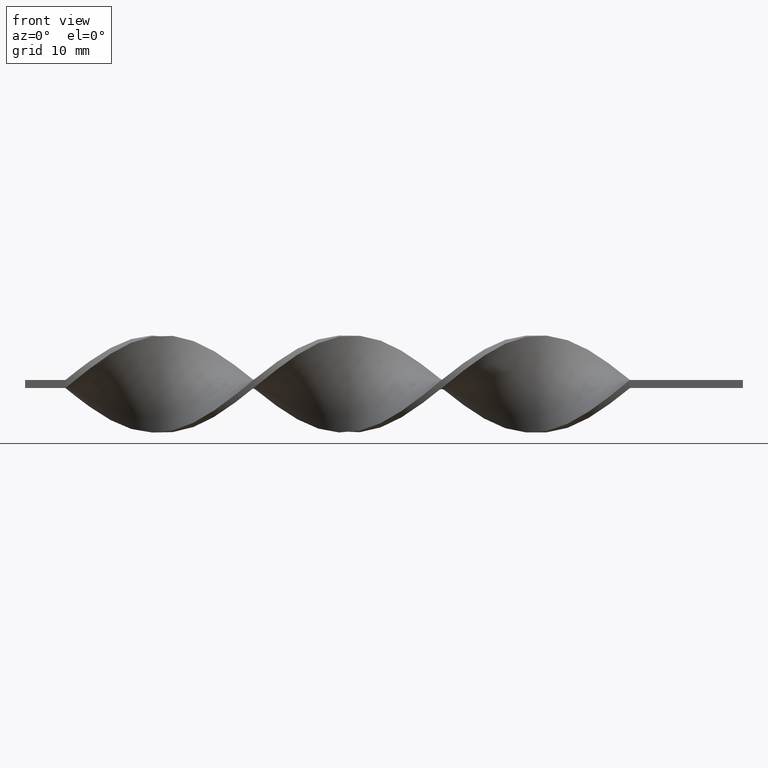
[diagram: clean part render]
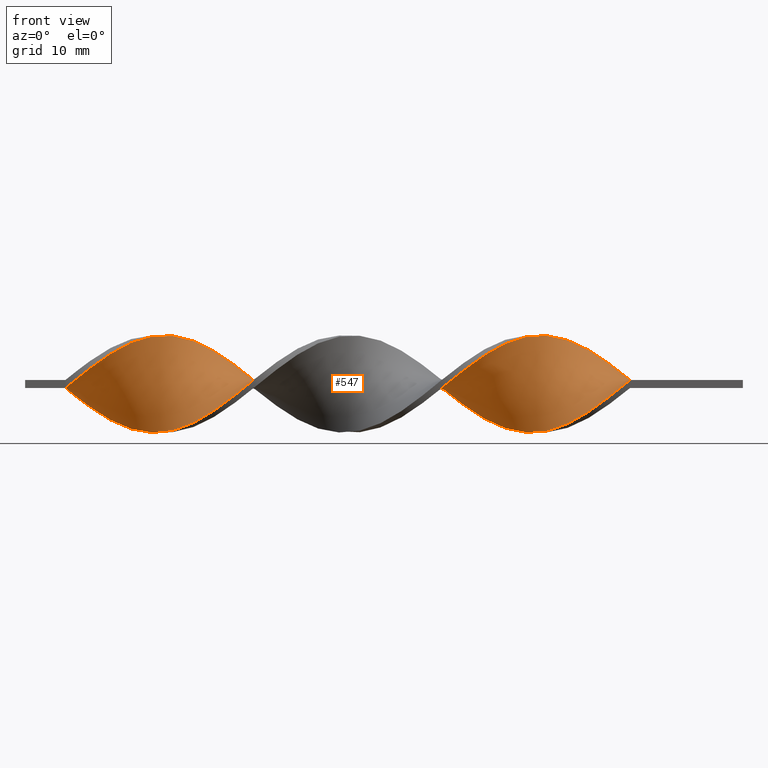
[diagram: same view with one face highlighted and labeled with its STEP entity id]
A machine part, front view. The second image highlights one B-rep face of the part: STEP entity #547.
In plain terms, the highlighted face is a freeform B-spline surface patch.
Its self-contained STEP definition (entity closure, byte-faithful):
#4 = CARTESIAN_POINT ( 'NONE',  ( -13.99999999999999822, 5.999999999999998224, 0.5000000000000000000 ) ) ;
#24 = CARTESIAN_POINT ( 'NONE',  ( -29.25641025641025905, -3.254798188466755615, 5.117688277455213708 ) ) ;
#33 = CARTESIAN_POINT ( 'NONE',  ( -84.00000000000000000, -6.000000000000001776, -0.4999999999999992784 ) ) ;
#37 = CARTESIAN_POINT ( 'NONE',  ( -21.17948717948717885, 2.996896547440105252, 5.221935568727515964 ) ) ;
#40 = CARTESIAN_POINT ( 'NONE',  ( -56.17948717948717530, 5.260288998093233026, -3.018907784180936194 ) ) ;
#48 = CARTESIAN_POINT ( 'NONE',  ( -54.38461538461538680, 4.384962638200767593, -4.190053366537511259 ) ) ;
#51 = CARTESIAN_POINT ( 'NONE',  ( -75.92307692307693401, -3.254798188466755615, 5.117688277455213708 ) ) ;
#58 = CARTESIAN_POINT ( 'NONE',  ( -42.71794871794872250, -4.159503159906211778, -4.352991323530320145 ) ) ;
#66 = CARTESIAN_POINT ( 'NONE',  ( -31.05128205128205465, -4.384962638200773810, 4.190053366537507706 ) ) ;
#73 = CARTESIAN_POINT ( 'NONE',  ( -70.53846153846153300, 0.9574036273986625822, 5.988975108237874601 ) ) ;
#81 = CARTESIAN_POINT ( 'NONE',  ( -66.94871794871794179, 3.630954320453863904, 4.858046446425393405 ) ) ;
#82 = CARTESIAN_POINT ( 'NONE',  ( -24.76923076923076650, -1.219574518580968547, -5.895984904460662257 ) ) ;
#84 = CARTESIAN_POINT ( 'NONE',  ( -32.84615384615384670, 4.688051999358551214, -3.847936200635250437 ) ) ;
#87 = CARTESIAN_POINT ( 'NONE',  ( -82.20512820512820440, -5.945308736700091856, 0.9504230770123227590 ) ) ;
#88 = CARTESIAN_POINT ( 'NONE',  ( -52.58974358974358410, 3.254798188466748954, -5.117688277455216372 ) ) ;
#92 = CARTESIAN_POINT ( 'NONE',  ( -38.23076923076922640, 6.060710991611128584, 0.2285318993335618554 ) ) ;
#93 = CARTESIAN_POINT ( 'NONE',  ( -52.58974358974358410, -2.362838774426347932, 5.585824691029640299 ) ) ;
#97 = CARTESIAN_POINT ( 'NONE',  ( -58.87179487179486870, 5.945308736700089192, -0.9504230770123260896 ) ) ;
#101 = CARTESIAN_POINT ( 'NONE',  ( -57.97435897435897090, -5.472697136436198484, 2.614197889543184772 ) ) ;
#102 = CARTESIAN_POINT ( 'NONE',  ( -46.30769230769230660, 2.595137443597920424, 5.432795012591220107 ) ) ;
#108 = CARTESIAN_POINT ( 'NONE',  ( -83.10256410256410220, 5.939289008388867863, -1.228531899333566324 ) ) ;
#114 = CARTESIAN_POINT ( 'NONE',  ( -46.30769230769230660, 2.595137443597920424, 5.432795012591220107 ) ) ;
#116 = CARTESIAN_POINT ( 'NONE',  ( -14.89743589743589602, 5.939289008388867863, 1.228531899333563215 ) ) ;
#121 = CARTESIAN_POINT ( 'NONE',  ( -49.89743589743589069, -0.2268656444829090235, 6.016521584715984972 ) ) ;
#126 = CARTESIAN_POINT ( 'NONE',  ( -83.10256410256410220, 5.939289008388867863, -1.228531899333566102 ) ) ;
#132 = CARTESIAN_POINT ( 'NONE',  ( -71.43589743589743080, -1.219574518580968547, -5.895984904460662257 ) ) ;
#133 = EDGE_CURVE ( 'NONE', #1590, #1489, #229, .T. ) ;
#139 = CARTESIAN_POINT ( 'NONE',  ( -28.35897435897435770, -2.595137443597922200, 5.432795012591221884 ) ) ;
#158 = CARTESIAN_POINT ( 'NONE',  ( -40.02564102564102200, -5.472697136436200260, -2.614197889543179887 ) ) ;
#164 = CARTESIAN_POINT ( 'NONE',  ( -28.35897435897435770, -2.595137443597922200, 5.432795012591221884 ) ) ;
#168 = CARTESIAN_POINT ( 'NONE',  ( -75.02564102564102200, -2.595137443597922200, 5.432795012591221884 ) ) ;
#175 = CARTESIAN_POINT ( 'NONE',  ( -68.74358974358973740, 2.362838774426346600, 5.585824691029639411 ) ) ;
#179 = CARTESIAN_POINT ( 'NONE',  ( -13.99999999999999645, -6.000000000000001776, 0.5000000000000000000 ) ) ;
#185 = CARTESIAN_POINT ( 'NONE',  ( -20.28205128205128460, 3.630954320453863904, 4.858046446425393405 ) ) ;
#188 = CARTESIAN_POINT ( 'NONE',  ( -84.00000000000000000, 5.999999999999998224, -0.5000000000000007772 ) ) ;
#190 = CARTESIAN_POINT ( 'NONE',  ( -31.94871794871794535, 4.159503159906205561, -4.352991323530322809 ) ) ;
#193 = CARTESIAN_POINT ( 'NONE',  ( -62.46153846153845990, 5.705993072412532285, 1.921364894438372550 ) ) ;
#203 = CARTESIAN_POINT ( 'NONE',  ( -36.43589743589743790, -6.060710991611132137, 0.2285318993335658799 ) ) ;
#204 = CARTESIAN_POINT ( 'NONE',  ( -42.71794871794872250, -4.159503159906211778, -4.352991323530320145 ) ) ;
#207 = CARTESIAN_POINT ( 'NONE',  ( -23.87179487179487580, -1.935476698729091671, -5.747901747727228283 ) ) ;
#213 = CARTESIAN_POINT ( 'NONE',  ( -75.92307692307691980, -3.254798188466755171, 5.117688277455213708 ) ) ;
#217 = CARTESIAN_POINT ( 'NONE',  ( -57.97435897435897090, -5.472697136436198484, 2.614197889543184772 ) ) ;
#222 = EDGE_LOOP ( 'NONE', ( #292, #1089, #1165, #1175 ) ) ;
#223 = CARTESIAN_POINT ( 'NONE',  ( -42.71794871794872250, 4.822625818147003862, 3.604480575359219063 ) ) ;
#229 =( BOUNDED_CURVE ( )  B_SPLINE_CURVE ( 2, ( #4, #757, #1050, #689, #925, #1311, #433, #185, #37, #1183, #1059, #811, #318, #828, #679, #403, #164, #1539, #535, #66, #1559, #1030, #1329, #1570, #1528, #203, #1173, #916, #1409, #553, #563, #1548, #58, #668, #441, #943, #1162, #299, #422, #1438, #1419, #934, #309, #280, #802, #48, #791, #1319, #1429, #950, #412, #821, #1289, #544, #193, #290, #699, #1040, #1153, #1447, #1300, #175, #1191, #73, #574, #1068, #742, #1232, #480, #213, #1094, #709, #854, #1201, #1077, #1598, #87, #472, #601 ),
 .UNSPECIFIED., .F., .T. ) 
 B_SPLINE_CURVE_WITH_KNOTS ( ( 3, 2, 2, 2, 2, 2, 2, 2, 2, 2, 2, 2, 2, 2, 2, 2, 2, 2, 2, 2, 2, 2, 2, 2, 2, 2, 2, 2, 2, 2, 2, 2, 2, 2, 2, 2, 2, 2, 2, 3 ),
 ( 0.000000000000000000, 0.01923076923076923184, 0.03846153846153846367, 0.05769230769230768857, 0.07692307692307692735, 0.09615384615384615918, 0.1153846153846153771, 0.1346153846153846090, 0.1538461538461538547, 0.1730769230769230449, 0.1923076923076923184, 0.2115384615384615363, 0.2307692307692307543, 0.2500000000000000000, 0.2692307692307692180, 0.2884615384615384359, 0.3076923076923077094, 0.3269230769230769273, 0.3461538461538460898, 0.3653846153846153633, 0.3846153846153846367, 0.4038461538461539102, 0.4230769230769230727, 0.4423076923076922906, 0.4615384615384615086, 0.4807692307692307820, 0.5000000000000000000, 0.5192307692307692735, 0.5384615384615384359, 0.5576923076923077094, 0.5769230769230768718, 0.5961538461538461453, 0.6153846153846154188, 0.6346153846153845812, 0.6538461538461538547, 0.6730769230769230171, 0.6923076923076921796, 0.7115384615384615641, 0.7307692307692307265, 0.7500000000000000000 ),
 .UNSPECIFIED. ) 
 CURVE ( )  GEOMETRIC_REPRESENTATION_ITEM ( )  RATIONAL_B_SPLINE_CURVE ( ( 1.000000000000000000, 0.9927088740980539727, 1.000000000000000000, 0.9927088740980539727, 1.000000000000000000, 0.9927088740980539727, 1.000000000000000000, 0.9927088740980539727, 1.000000000000000000, 0.9927088740980539727, 1.000000000000000000, 0.9927088740980539727, 1.000000000000000000, 0.9927088740980539727, 1.000000000000000000, 0.9927088740980539727, 1.000000000000000000, 0.9927088740980539727, 1.000000000000000000, 0.9927088740980539727, 1.000000000000000000, 0.9927088740980539727, 1.000000000000000000, 0.9927088740980539727, 1.000000000000000000, 0.9927088740980539727, 1.000000000000000000, 0.9927088740980539727, 1.000000000000000000, 0.9927088740980539727, 1.000000000000000000, 0.9927088740980539727, 1.000000000000000000, 0.9927088740980539727, 1.000000000000000000, 0.9927088740980539727, 1.000000000000000000, 0.9927088740980539727, 1.000000000000000000, 0.9927088740980539727, 1.000000000000000000, 0.9927088740980539727, 1.000000000000000000, 0.9927088740980539727, 1.000000000000000000, 0.9927088740980539727, 1.000000000000000000, 0.9927088740980539727, 1.000000000000000000, 0.9927088740980539727, 1.000000000000000000, 0.9927088740980539727, 1.000000000000000000, 0.9927088740980539727, 1.000000000000000000, 0.9927088740980539727, 1.000000000000000000, 0.9927088740980539727, 1.000000000000000000, 0.9927088740980539727, 1.000000000000000000, 0.9927088740980539727, 1.000000000000000000, 0.9927088740980539727, 1.000000000000000000, 0.9927088740980539727, 1.000000000000000000, 0.9927088740980539727, 1.000000000000000000, 0.9927088740980539727, 1.000000000000000000, 0.9927088740980539727, 1.000000000000000000, 0.9927088740980539727, 1.000000000000000000, 0.9927088740980539727, 1.000000000000000000, 0.9927088740980539727, 1.000000000000000000 ) ) 
 REPRESENTATION_ITEM ( '' )  );
#231 = CARTESIAN_POINT ( 'NONE',  ( -67.84615384615385381, -3.819880413333765823, -4.653870821996360263 ) ) ;
#235 = CARTESIAN_POINT ( 'NONE',  ( -40.02564102564102200, 5.829906481789052464, 1.672314254691075419 ) ) ;
#236 = CARTESIAN_POINT ( 'NONE',  ( -81.30769230769233502, 5.472697136436194931, -2.614197889543184328 ) ) ;
#241 = CARTESIAN_POINT ( 'NONE',  ( -47.20512820512820440, 1.935476698729087452, 5.747901747727229171 ) ) ;
#242 = CARTESIAN_POINT ( 'NONE',  ( -51.69230769230769340, -1.660121200912508588, 5.787399899633757450 ) ) ;
#250 = CARTESIAN_POINT ( 'NONE',  ( -64.25641025641024839, -5.545097739941144965, -2.345611019436005584 ) ) ;
#257 = CARTESIAN_POINT ( 'NONE',  ( -72.33333333333332860, -0.5036723384328438691, -6.044068061194097119 ) ) ;
#263 = CARTESIAN_POINT ( 'NONE',  ( -18.48717948717948545, 4.688051999358552102, 3.847936200635250437 ) ) ;
#280 = CARTESIAN_POINT ( 'NONE',  ( -52.58974358974359120, 3.254798188466748510, -5.117688277455216372 ) ) ;
#284 = CARTESIAN_POINT ( 'NONE',  ( -68.74358974358973740, 2.362838774426347044, 5.585824691029640299 ) ) ;
#290 = CARTESIAN_POINT ( 'NONE',  ( -63.35897435897436480, 5.472697136436195819, 2.614197889543182107 ) ) ;
#292 = ORIENTED_EDGE ( 'NONE', *, *, #933, .F. ) ;
#294 = CARTESIAN_POINT ( 'NONE',  ( -26.56410256410256210, 0.2268656444829082741, -6.016521584715985860 ) ) ;
#295 = CARTESIAN_POINT ( 'NONE',  ( -13.99999999999999822, 5.999999999999998224, 0.5000000000000000000 ) ) ;
#299 = CARTESIAN_POINT ( 'NONE',  ( -47.20512820512820440, -0.9574036273986661350, -5.988975108237873712 ) ) ;
#305 = CARTESIAN_POINT ( 'NONE',  ( -23.87179487179487580, -1.935476698729091671, -5.747901747727228283 ) ) ;
#309 = CARTESIAN_POINT ( 'NONE',  ( -51.69230769230769340, 2.595137443597918647, -5.432795012591220996 ) ) ;
#312 = CARTESIAN_POINT ( 'NONE',  ( -19.38461538461538325, -4.822625818147006527, -3.604480575359219952 ) ) ;
#318 = CARTESIAN_POINT ( 'NONE',  ( -24.76923076923076650, 0.2268656444829103280, 6.016521584715985860 ) ) ;
#319 = CARTESIAN_POINT ( 'NONE',  ( -84.00000000000000000, -6.000000000000001776, -0.4999999999999992784 ) ) ;
#330 = CARTESIAN_POINT ( 'NONE',  ( -70.53846153846153300, 0.9574036273986625822, 5.988975108237873712 ) ) ;
#334 = CARTESIAN_POINT ( 'NONE',  ( -37.33333333333332860, 5.999999999999998224, -0.5000000000000007772 ) ) ;
#339 = CARTESIAN_POINT ( 'NONE',  ( -60.66666666666666430, -6.000000000000001776, 0.5000000000000000000 ) ) ;
#348 = CARTESIAN_POINT ( 'NONE',  ( -31.05128205128205465, 3.630954320453861239, -4.858046446425394294 ) ) ;
#349 = CARTESIAN_POINT ( 'NONE',  ( -76.82051282051281760, 2.996896547440103920, -5.221935568727516852 ) ) ;
#355 = CARTESIAN_POINT ( 'NONE',  ( -36.43589743589743790, 5.939289008388867863, -1.228531899333566102 ) ) ;
#356 = CARTESIAN_POINT ( 'NONE',  ( -50.79487179487178850, -0.9574036273986635814, 5.988975108237873712 ) ) ;
#362 = CARTESIAN_POINT ( 'NONE',  ( -34.64102564102564230, 5.472697136436194931, -2.614197889543184328 ) ) ;
#363 = CARTESIAN_POINT ( 'NONE',  ( -17.58974358974358765, 5.080374567897373517, 3.231067045089215828 ) ) ;
#368 = CARTESIAN_POINT ( 'NONE',  ( -74.12820512820510999, 0.9574036273986619161, -5.988975108237873712 ) ) ;
#379 = CARTESIAN_POINT ( 'NONE',  ( -84.00000000000000000, 1.999999999999998224, -0.5000000000000002220 ) ) ;
#382 = CARTESIAN_POINT ( 'NONE',  ( -75.92307692307691980, 2.362838774426345712, -5.585824691029639411 ) ) ;
#383 = CARTESIAN_POINT ( 'NONE',  ( -24.76923076923076650, 0.2268656444829103280, 6.016521584715985860 ) ) ;
#390 = CARTESIAN_POINT ( 'NONE',  ( -32.84615384615384670, -5.260288998093236579, 3.018907784180935749 ) ) ;
#398 = CARTESIAN_POINT ( 'NONE',  ( -22.97435897435897090, 1.660121200912505479, 5.787399899633756561 ) ) ;
#403 = CARTESIAN_POINT ( 'NONE',  ( -27.46153846153846345, -1.935476698729090783, 5.747901747727229171 ) ) ;
#405 = CARTESIAN_POINT ( 'NONE',  ( -66.05128205128204399, 4.159503159906207337, 4.352991323530321033 ) ) ;
#409 = LINE ( 'NONE', #647, #1195 ) ;
#412 = CARTESIAN_POINT ( 'NONE',  ( -58.87179487179486870, 5.945308736700089192, -0.9504230770123260896 ) ) ;
#415 = CARTESIAN_POINT ( 'NONE',  ( -37.33333333333332860, -6.000000000000001776, -0.4999999999999992784 ) ) ;
#422 = CARTESIAN_POINT ( 'NONE',  ( -48.10256410256410220, -0.2268656444829164898, -6.016521584715985860 ) ) ;
#428 = CARTESIAN_POINT ( 'NONE',  ( -20.28205128205128460, -4.384962638200775586, -4.190053366537506818 ) ) ;
#433 = CARTESIAN_POINT ( 'NONE',  ( -19.38461538461538325, 4.159503159906207337, 4.352991323530321033 ) ) ;
#438 = FACE_OUTER_BOUND ( 'NONE', #222, .T. ) ;
#441 = CARTESIAN_POINT ( 'NONE',  ( -44.51282051282051100, -2.996896547440109693, -5.221935568727515964 ) ) ;
#446 = CARTESIAN_POINT ( 'NONE',  ( -16.69230769230769695, -5.829906481789053352, -1.672314254691077640 ) ) ;
#454 = CARTESIAN_POINT ( 'NONE',  ( -52.58974358974359120, -2.362838774426347488, 5.585824691029640299 ) ) ;
#456 = CARTESIAN_POINT ( 'NONE',  ( -70.53846153846153300, -1.935476698729091671, -5.747901747727228283 ) ) ;
#462 = CARTESIAN_POINT ( 'NONE',  ( -64.25641025641024839, 5.080374567897373517, 3.231067045089215828 ) ) ;
#465 = CARTESIAN_POINT ( 'NONE',  ( -57.07692307692307310, -5.080374567897375293, 3.231067045089219825 ) ) ;
#467 = CARTESIAN_POINT ( 'NONE',  ( -38.23076923076922640, 6.060710991611127696, 0.2285318993335618554 ) ) ;
#472 = CARTESIAN_POINT ( 'NONE',  ( -83.10256410256410220, -6.060710991611132137, 0.2285318993335658799 ) ) ;
#473 = CARTESIAN_POINT ( 'NONE',  ( -40.92307692307691980, -5.080374567897377069, -3.231067045089215828 ) ) ;
#476 = CARTESIAN_POINT ( 'NONE',  ( -53.48717948717948900, -2.996896547440107472, 5.221935568727517740 ) ) ;
#477 = CARTESIAN_POINT ( 'NONE',  ( -34.64102564102564230, 5.472697136436194931, -2.614197889543184328 ) ) ;
#480 = CARTESIAN_POINT ( 'NONE',  ( -75.02564102564102200, -2.595137443597922200, 5.432795012591221884 ) ) ;
#484 = CARTESIAN_POINT ( 'NONE',  ( -13.99999999999999822, 5.999999999999998224, 0.5000000000000000000 ) ) ;
#493 = CARTESIAN_POINT ( 'NONE',  ( -16.69230769230769695, 5.472697136436195819, 2.614197889543182107 ) ) ;
#503 = CARTESIAN_POINT ( 'NONE',  ( -19.38461538461538325, 4.159503159906207337, 4.352991323530321033 ) ) ;
#506 = CARTESIAN_POINT ( 'NONE',  ( -59.76923076923076650, -5.939289008388871416, 1.228531899333566768 ) ) ;
#507 = CARTESIAN_POINT ( 'NONE',  ( -25.66666666666666785, -0.5036723384328430919, 6.044068061194097119 ) ) ;
#522 = CARTESIAN_POINT ( 'NONE',  ( -30.15384615384615330, -3.819880413333764491, 4.653870821996361151 ) ) ;
#529 = CARTESIAN_POINT ( 'NONE',  ( -13.99999999999999645, -6.000000000000001776, 0.5000000000000000000 ) ) ;
#535 = CARTESIAN_POINT ( 'NONE',  ( -30.15384615384615330, -3.819880413333764491, 4.653870821996361151 ) ) ;
#537 = CARTESIAN_POINT ( 'NONE',  ( -60.66666666666666430, 5.999999999999998224, 0.5000000000000000000 ) ) ;
#540 = CARTESIAN_POINT ( 'NONE',  ( -24.76923076923076650, -1.219574518580968547, -5.895984904460662257 ) ) ;
#543 =( BOUNDED_CURVE ( )  B_SPLINE_CURVE ( 2, ( #179, #1432, #954, #692, #1186, #1442, #312, #1071, #1572, #1449, #1332, #207, #82, #586, #1532, #746, #1361, #615, #1227, #348, #1081, #1476, #1106, #362, #724, #355, #733, #92, #1218, #235, #1608, #1490, #858, #1368, #964, #1242, #114, #241, #753, #1097, #121, #1583, #596, #454, #476, #606, #1460, #1592, #465, #101, #982, #506, #1496, #1009, #1146, #1500, #250, #1395, #770, #1275, #1382, #1119, #1138, #1014, #132, #257, #1023, #368, #908, #382, #878, #764, #1000, #1132, #1254, #1522, #1265, #126, #1389 ),
 .UNSPECIFIED., .F., .T. ) 
 B_SPLINE_CURVE_WITH_KNOTS ( ( 3, 2, 2, 2, 2, 2, 2, 2, 2, 2, 2, 2, 2, 2, 2, 2, 2, 2, 2, 2, 2, 2, 2, 2, 2, 2, 2, 2, 2, 2, 2, 2, 2, 2, 2, 2, 2, 2, 2, 3 ),
 ( 0.000000000000000000, 0.01923076923076923184, 0.03846153846153846367, 0.05769230769230768857, 0.07692307692307692735, 0.09615384615384615918, 0.1153846153846153771, 0.1346153846153846090, 0.1538461538461538547, 0.1730769230769230449, 0.1923076923076923184, 0.2115384615384615363, 0.2307692307692307543, 0.2500000000000000000, 0.2692307692307692180, 0.2884615384615384359, 0.3076923076923077094, 0.3269230769230769273, 0.3461538461538460898, 0.3653846153846153633, 0.3846153846153846367, 0.4038461538461539102, 0.4230769230769230727, 0.4423076923076922906, 0.4615384615384615086, 0.4807692307692307820, 0.5000000000000000000, 0.5192307692307692735, 0.5384615384615384359, 0.5576923076923077094, 0.5769230769230768718, 0.5961538461538461453, 0.6153846153846154188, 0.6346153846153845812, 0.6538461538461538547, 0.6730769230769230171, 0.6923076923076921796, 0.7115384615384615641, 0.7307692307692307265, 0.7500000000000000000 ),
 .UNSPECIFIED. ) 
 CURVE ( )  GEOMETRIC_REPRESENTATION_ITEM ( )  RATIONAL_B_SPLINE_CURVE ( ( 1.000000000000000000, 0.9927088740980539727, 1.000000000000000000, 0.9927088740980539727, 1.000000000000000000, 0.9927088740980539727, 1.000000000000000000, 0.9927088740980539727, 1.000000000000000000, 0.9927088740980539727, 1.000000000000000000, 0.9927088740980539727, 1.000000000000000000, 0.9927088740980539727, 1.000000000000000000, 0.9927088740980539727, 1.000000000000000000, 0.9927088740980539727, 1.000000000000000000, 0.9927088740980539727, 1.000000000000000000, 0.9927088740980539727, 1.000000000000000000, 0.9927088740980539727, 1.000000000000000000, 0.9927088740980539727, 1.000000000000000000, 0.9927088740980539727, 1.000000000000000000, 0.9927088740980539727, 1.000000000000000000, 0.9927088740980539727, 1.000000000000000000, 0.9927088740980539727, 1.000000000000000000, 0.9927088740980539727, 1.000000000000000000, 0.9927088740980539727, 1.000000000000000000, 0.9927088740980539727, 1.000000000000000000, 0.9927088740980539727, 1.000000000000000000, 0.9927088740980539727, 1.000000000000000000, 0.9927088740980539727, 1.000000000000000000, 0.9927088740980539727, 1.000000000000000000, 0.9927088740980539727, 1.000000000000000000, 0.9927088740980539727, 1.000000000000000000, 0.9927088740980539727, 1.000000000000000000, 0.9927088740980539727, 1.000000000000000000, 0.9927088740980539727, 1.000000000000000000, 0.9927088740980539727, 1.000000000000000000, 0.9927088740980539727, 1.000000000000000000, 0.9927088740980539727, 1.000000000000000000, 0.9927088740980539727, 1.000000000000000000, 0.9927088740980539727, 1.000000000000000000, 0.9927088740980539727, 1.000000000000000000, 0.9927088740980539727, 1.000000000000000000, 0.9927088740980539727, 1.000000000000000000, 0.9927088740980539727, 1.000000000000000000, 0.9927088740980539727, 1.000000000000000000 ) ) 
 REPRESENTATION_ITEM ( '' )  );
#544 = CARTESIAN_POINT ( 'NONE',  ( -61.56410256410256920, 5.939289008388867863, 1.228531899333562993 ) ) ;
#547 = ADVANCED_FACE ( 'NONE', ( #438 ), #898, .T. ) ;
#548 = CARTESIAN_POINT ( 'NONE',  ( -79.51282051282051100, -5.260288998093236579, 3.018907784180935749 ) ) ;
#550 = CARTESIAN_POINT ( 'NONE',  ( -14.89743589743589602, -6.060710991611131249, -0.2285318993335631599 ) ) ;
#553 = CARTESIAN_POINT ( 'NONE',  ( -40.02564102564102200, -5.472697136436200260, -2.614197889543179887 ) ) ;
#563 = CARTESIAN_POINT ( 'NONE',  ( -40.92307692307691980, -5.080374567897377069, -3.231067045089215828 ) ) ;
#564 = CARTESIAN_POINT ( 'NONE',  ( -84.00000000000000000, -6.000000000000001776, -0.4999999999999992784 ) ) ;
#574 = CARTESIAN_POINT ( 'NONE',  ( -71.43589743589743080, 0.2268656444829103280, 6.016521584715985860 ) ) ;
#583 = CARTESIAN_POINT ( 'NONE',  ( -69.64102564102564941, 1.660121200912505479, 5.787399899633756561 ) ) ;
#586 = CARTESIAN_POINT ( 'NONE',  ( -25.66666666666666785, -0.5036723384328438691, -6.044068061194097119 ) ) ;
#588 = CARTESIAN_POINT ( 'NONE',  ( -39.12820512820512420, 5.945308736700090080, 0.9504230770123185401 ) ) ;
#593 = CARTESIAN_POINT ( 'NONE',  ( -61.56410256410256920, 5.939289008388867863, 1.228531899333563215 ) ) ;
#596 = CARTESIAN_POINT ( 'NONE',  ( -51.69230769230769340, -1.660121200912508588, 5.787399899633757450 ) ) ;
#597 = CARTESIAN_POINT ( 'NONE',  ( -45.41025641025640880, 3.254798188466754727, 5.117688277455211932 ) ) ;
#601 = CARTESIAN_POINT ( 'NONE',  ( -84.00000000000000000, -6.000000000000001776, -0.4999999999999992784 ) ) ;
#603 = CARTESIAN_POINT ( 'NONE',  ( -45.41025641025640880, -2.362838774426354593, -5.585824691029638522 ) ) ;
#606 = CARTESIAN_POINT ( 'NONE',  ( -54.38461538461538680, -3.630954320453861683, 4.858046446425396070 ) ) ;
#608 = CARTESIAN_POINT ( 'NONE',  ( -74.12820512820512420, 0.9574036273986619161, -5.988975108237873712 ) ) ;
#615 = CARTESIAN_POINT ( 'NONE',  ( -29.25641025641025905, 2.362838774426345712, -5.585824691029639411 ) ) ;
#617 = CARTESIAN_POINT ( 'NONE',  ( -84.00000000000000000, 5.999999999999998224, -0.5000000000000007772 ) ) ;
#621 = CARTESIAN_POINT ( 'NONE',  ( -43.61538461538461320, 4.384962638200772034, 4.190053366537505042 ) ) ;
#647 = CARTESIAN_POINT ( 'NONE',  ( -13.99999999999999822, 5.999999999999998224, 0.5000000000000000000 ) ) ;
#652 = CARTESIAN_POINT ( 'NONE',  ( -33.74358974358974450, -5.545097739941144077, 2.345611019436007361 ) ) ;
#660 = CARTESIAN_POINT ( 'NONE',  ( -49.89743589743589069, 1.219574518580958999, -5.895984904460663145 ) ) ;
#668 = CARTESIAN_POINT ( 'NONE',  ( -43.61538461538461320, -3.630954320453868345, -4.858046446425391629 ) ) ;
#672 = CARTESIAN_POINT ( 'NONE',  ( -76.82051282051281760, -3.819880413333764491, 4.653870821996361151 ) ) ;
#679 = CARTESIAN_POINT ( 'NONE',  ( -26.56410256410256210, -1.219574518580966549, 5.895984904460662257 ) ) ;
#685 = CARTESIAN_POINT ( 'NONE',  ( -28.35897435897435770, 1.660121200912503259, -5.787399899633756561 ) ) ;
#689 = CARTESIAN_POINT ( 'NONE',  ( -16.69230769230769340, 5.472697136436195819, 2.614197889543182107 ) ) ;
#692 = CARTESIAN_POINT ( 'NONE',  ( -16.69230769230769340, -5.829906481789053352, -1.672314254691077418 ) ) ;
#699 = CARTESIAN_POINT ( 'NONE',  ( -64.25641025641024839, 5.080374567897373517, 3.231067045089215828 ) ) ;
#704 = CARTESIAN_POINT ( 'NONE',  ( -13.99999999999999822, -6.000000000000001776, 0.5000000000000000000 ) ) ;
#709 = CARTESIAN_POINT ( 'NONE',  ( -77.71794871794874382, -4.384962638200773810, 4.190053366537507706 ) ) ;
#710 = CARTESIAN_POINT ( 'NONE',  ( -51.69230769230769340, 2.595137443597918647, -5.432795012591220996 ) ) ;
#715 = CARTESIAN_POINT ( 'NONE',  ( -22.97435897435897090, -2.595137443597924420, -5.432795012591220107 ) ) ;
#724 = CARTESIAN_POINT ( 'NONE',  ( -35.53846153846153300, 5.705993072412531397, -1.921364894438374549 ) ) ;
#725 = CARTESIAN_POINT ( 'NONE',  ( -41.82051282051281760, 5.260288998093234802, 3.018907784180933973 ) ) ;
#733 = CARTESIAN_POINT ( 'NONE',  ( -37.33333333333332860, 5.999999999999998224, -0.5000000000000007772 ) ) ;
#735 = CARTESIAN_POINT ( 'NONE',  ( -69.64102564102564941, -2.595137443597924420, -5.432795012591220107 ) ) ;
#740 = CARTESIAN_POINT ( 'NONE',  ( -80.41025641025640880, 5.080374567897372629, -3.231067045089216716 ) ) ;
#742 = CARTESIAN_POINT ( 'NONE',  ( -73.23076923076924061, -1.219574518580966549, 5.895984904460662257 ) ) ;
#746 = CARTESIAN_POINT ( 'NONE',  ( -27.46153846153846345, 0.9574036273986619161, -5.988975108237873712 ) ) ;
#747 = CARTESIAN_POINT ( 'NONE',  ( -40.02564102564102200, 5.829906481789052464, 1.672314254691075419 ) ) ;
#753 = CARTESIAN_POINT ( 'NONE',  ( -48.10256410256410220, 1.219574518580966549, 5.895984904460662257 ) ) ;
#754 = CARTESIAN_POINT ( 'NONE',  ( -54.38461538461538680, -3.630954320453861683, 4.858046446425396070 ) ) ;
#757 = CARTESIAN_POINT ( 'NONE',  ( -14.89743589743589602, 5.939289008388867863, 1.228531899333562993 ) ) ;
#764 = CARTESIAN_POINT ( 'NONE',  ( -77.71794871794874382, 3.630954320453861239, -4.858046446425394294 ) ) ;
#770 = CARTESIAN_POINT ( 'NONE',  ( -66.05128205128204399, -4.822625818147006527, -3.604480575359219952 ) ) ;
#771 = CARTESIAN_POINT ( 'NONE',  ( -20.28205128205128460, 3.630954320453863904, 4.858046446425393405 ) ) ;
#785 = CARTESIAN_POINT ( 'NONE',  ( -49.00000000000000711, 0.5036723384328384290, -6.044068061194097119 ) ) ;
#791 = CARTESIAN_POINT ( 'NONE',  ( -55.28205128205128460, 4.822625818147000309, -3.604480575359223060 ) ) ;
#794 = CARTESIAN_POINT ( 'NONE',  ( -46.30769230769230660, -1.660121200912510142, -5.787399899633756561 ) ) ;
#797 = CARTESIAN_POINT ( 'NONE',  ( -15.79487179487179205, -5.945308736700092744, -0.9504230770123205385 ) ) ;
#802 = CARTESIAN_POINT ( 'NONE',  ( -53.48717948717948900, 3.819880413333759606, -4.653870821996362039 ) ) ;
#811 = CARTESIAN_POINT ( 'NONE',  ( -23.87179487179487580, 0.9574036273986625822, 5.988975108237874601 ) ) ;
#817 = CARTESIAN_POINT ( 'NONE',  ( -21.17948717948717885, -3.819880413333765823, -4.653870821996360263 ) ) ;
#821 = CARTESIAN_POINT ( 'NONE',  ( -59.76923076923076650, 6.060710991611128584, -0.2285318993335666293 ) ) ;
#828 = CARTESIAN_POINT ( 'NONE',  ( -25.66666666666666785, -0.5036723384328430919, 6.044068061194097119 ) ) ;
#829 = CARTESIAN_POINT ( 'NONE',  ( -73.23076923076924061, -1.219574518580966549, 5.895984904460662257 ) ) ;
#835 = CARTESIAN_POINT ( 'NONE',  ( -25.66666666666666785, -0.5036723384328438691, -6.044068061194097119 ) ) ;
#841 = CARTESIAN_POINT ( 'NONE',  ( -57.97435897435897090, 5.829906481789050687, -1.672314254691080526 ) ) ;
#848 = CARTESIAN_POINT ( 'NONE',  ( -55.28205128205128460, 4.822625818147000309, -3.604480575359223060 ) ) ;
#852 = CARTESIAN_POINT ( 'NONE',  ( -65.15384615384614619, -5.260288998093237467, -3.018907784180934417 ) ) ;
#854 = CARTESIAN_POINT ( 'NONE',  ( -78.61538461538461320, -4.822625818147004750, 3.604480575359222172 ) ) ;
#858 = CARTESIAN_POINT ( 'NONE',  ( -42.71794871794872250, 4.822625818147003862, 3.604480575359219063 ) ) ;
#859 = CARTESIAN_POINT ( 'NONE',  ( -77.71794871794872961, 3.630954320453861239, -4.858046446425394294 ) ) ;
#867 = CARTESIAN_POINT ( 'NONE',  ( -66.94871794871794179, -4.384962638200775586, -4.190053366537506818 ) ) ;
#872 = CARTESIAN_POINT ( 'NONE',  ( -48.10256410256410220, 1.219574518580966549, 5.895984904460662257 ) ) ;
#878 = CARTESIAN_POINT ( 'NONE',  ( -76.82051282051281760, 2.996896547440103920, -5.221935568727516852 ) ) ;
#894 = CARTESIAN_POINT ( 'NONE',  ( -22.07692307692308376, 2.362838774426347044, 5.585824691029640299 ) ) ;
#898 =( BOUNDED_SURFACE ( )  B_SPLINE_SURFACE ( 1, 2, ( 
 ( #704, #550, #797, #446, #1046, #1196, #1450, #428, #817, #1545, #715, #305, #540, #835, #294, #1308, #685, #1179, #1315, #940, #190, #84, #1220, #477, #1369, #1469, #334, #467, #588, #747, #990, #725, #223, #621, #1084, #597, #102, #1584, #872, #1342, #1484, #356, #242, #93, #1601, #754, #1229, #976, #1349, #217, #1492, #1609, #339, #1595, #967, #984, #1113, #852, #1090, #867, #231, #1244, #735, #456, #1107, #994, #1462, #608, #1099, #1477, #349, #859, #1355, #1363, #740, #236, #1235, #108, #617 ),
 ( #484, #116, #1617, #493, #363, #263, #503, #771, #1139, #894, #398, #910, #383, #507, #1502, #1390, #139, #24, #522, #1015, #1515, #390, #652, #1024, #1404, #1088, #415, #1330, #1282, #158, #473, #980, #204, #1474, #1456, #603, #794, #1422, #1095, #785, #660, #919, #710, #88, #1155, #1589, #848, #40, #1202, #841, #97, #960, #537, #593, #1033, #1531, #462, #1580, #405, #81, #1412, #284, #583, #330, #1292, #973, #829, #1466, #168, #51, #672, #1166, #1078, #548, #1043, #1542, #1339, #928, #319 ) ),
 .UNSPECIFIED., .F., .F., .F. ) 
 B_SPLINE_SURFACE_WITH_KNOTS ( ( 2, 2 ),
 ( 3, 2, 2, 2, 2, 2, 2, 2, 2, 2, 2, 2, 2, 2, 2, 2, 2, 2, 2, 2, 2, 2, 2, 2, 2, 2, 2, 2, 2, 2, 2, 2, 2, 2, 2, 2, 2, 2, 2, 3 ),
 ( 0.000000000000000000, 1.000000000000000000 ),
 ( 0.000000000000000000, 0.01923076923076923184, 0.03846153846153846367, 0.05769230769230769551, 0.07692307692307692735, 0.09615384615384615918, 0.1153846153846153910, 0.1346153846153846090, 0.1538461538461538547, 0.1730769230769230727, 0.1923076923076923184, 0.2115384615384615363, 0.2307692307692307820, 0.2500000000000000000, 0.2692307692307692180, 0.2884615384615384359, 0.3076923076923077094, 0.3269230769230769273, 0.3461538461538461453, 0.3653846153846153633, 0.3846153846153846367, 0.4038461538461538547, 0.4230769230769230727, 0.4423076923076922906, 0.4615384615384615641, 0.4807692307692307820, 0.5000000000000000000, 0.5192307692307692735, 0.5384615384615384359, 0.5576923076923077094, 0.5769230769230768718, 0.5961538461538461453, 0.6153846153846154188, 0.6346153846153845812, 0.6538461538461538547, 0.6730769230769231282, 0.6923076923076922906, 0.7115384615384615641, 0.7307692307692307265, 0.7500000000000000000 ),
 .UNSPECIFIED. ) 
 GEOMETRIC_REPRESENTATION_ITEM ( )  RATIONAL_B_SPLINE_SURFACE ( (
 ( 1.000000000000000000, 0.9927088740980539727, 1.000000000000000000, 0.9927088740980539727, 1.000000000000000000, 0.9927088740980539727, 1.000000000000000000, 0.9927088740980539727, 1.000000000000000000, 0.9927088740980539727, 1.000000000000000000, 0.9927088740980539727, 1.000000000000000000, 0.9927088740980539727, 1.000000000000000000, 0.9927088740980539727, 1.000000000000000000, 0.9927088740980539727, 1.000000000000000000, 0.9927088740980539727, 1.000000000000000000, 0.9927088740980539727, 1.000000000000000000, 0.9927088740980539727, 1.000000000000000000, 0.9927088740980539727, 1.000000000000000000, 0.9927088740980539727, 1.000000000000000000, 0.9927088740980539727, 1.000000000000000000, 0.9927088740980539727, 1.000000000000000000, 0.9927088740980539727, 1.000000000000000000, 0.9927088740980539727, 1.000000000000000000, 0.9927088740980539727, 1.000000000000000000, 0.9927088740980539727, 1.000000000000000000, 0.9927088740980539727, 1.000000000000000000, 0.9927088740980539727, 1.000000000000000000, 0.9927088740980539727, 1.000000000000000000, 0.9927088740980539727, 1.000000000000000000, 0.9927088740980539727, 1.000000000000000000, 0.9927088740980539727, 1.000000000000000000, 0.9927088740980539727, 1.000000000000000000, 0.9927088740980539727, 1.000000000000000000, 0.9927088740980539727, 1.000000000000000000, 0.9927088740980539727, 1.000000000000000000, 0.9927088740980539727, 1.000000000000000000, 0.9927088740980539727, 1.000000000000000000, 0.9927088740980539727, 1.000000000000000000, 0.9927088740980539727, 1.000000000000000000, 0.9927088740980539727, 1.000000000000000000, 0.9927088740980539727, 1.000000000000000000, 0.9927088740980539727, 1.000000000000000000, 0.9927088740980539727, 1.000000000000000000, 0.9927088740980539727, 1.000000000000000000),
 ( 1.000000000000000000, 0.9927088740980539727, 1.000000000000000000, 0.9927088740980539727, 1.000000000000000000, 0.9927088740980539727, 1.000000000000000000, 0.9927088740980539727, 1.000000000000000000, 0.9927088740980539727, 1.000000000000000000, 0.9927088740980539727, 1.000000000000000000, 0.9927088740980539727, 1.000000000000000000, 0.9927088740980539727, 1.000000000000000000, 0.9927088740980539727, 1.000000000000000000, 0.9927088740980539727, 1.000000000000000000, 0.9927088740980539727, 1.000000000000000000, 0.9927088740980539727, 1.000000000000000000, 0.9927088740980539727, 1.000000000000000000, 0.9927088740980539727, 1.000000000000000000, 0.9927088740980539727, 1.000000000000000000, 0.9927088740980539727, 1.000000000000000000, 0.9927088740980539727, 1.000000000000000000, 0.9927088740980539727, 1.000000000000000000, 0.9927088740980539727, 1.000000000000000000, 0.9927088740980539727, 1.000000000000000000, 0.9927088740980539727, 1.000000000000000000, 0.9927088740980539727, 1.000000000000000000, 0.9927088740980539727, 1.000000000000000000, 0.9927088740980539727, 1.000000000000000000, 0.9927088740980539727, 1.000000000000000000, 0.9927088740980539727, 1.000000000000000000, 0.9927088740980539727, 1.000000000000000000, 0.9927088740980539727, 1.000000000000000000, 0.9927088740980539727, 1.000000000000000000, 0.9927088740980539727, 1.000000000000000000, 0.9927088740980539727, 1.000000000000000000, 0.9927088740980539727, 1.000000000000000000, 0.9927088740980539727, 1.000000000000000000, 0.9927088740980539727, 1.000000000000000000, 0.9927088740980539727, 1.000000000000000000, 0.9927088740980539727, 1.000000000000000000, 0.9927088740980539727, 1.000000000000000000, 0.9927088740980539727, 1.000000000000000000, 0.9927088740980539727, 1.000000000000000000) ) ) 
 REPRESENTATION_ITEM ( '' )  SURFACE ( )  );
#901 = EDGE_CURVE ( 'NONE', #1096, #1489, #1197, .T. ) ;
#903 = CARTESIAN_POINT ( 'NONE',  ( -84.00000000000000000, 5.999999999999998224, -0.5000000000000007772 ) ) ;
#908 = CARTESIAN_POINT ( 'NONE',  ( -75.02564102564102200, 1.660121200912503259, -5.787399899633756561 ) ) ;
#910 = CARTESIAN_POINT ( 'NONE',  ( -23.87179487179487580, 0.9574036273986625822, 5.988975108237873712 ) ) ;
#916 = CARTESIAN_POINT ( 'NONE',  ( -38.23076923076922640, -5.939289008388871416, -1.228531899333561661 ) ) ;
#919 = CARTESIAN_POINT ( 'NONE',  ( -50.79487179487178850, 1.935476698729085454, -5.747901747727230060 ) ) ;
#925 = CARTESIAN_POINT ( 'NONE',  ( -17.58974358974358765, 5.080374567897373517, 3.231067045089215828 ) ) ;
#928 = CARTESIAN_POINT ( 'NONE',  ( -83.10256410256410220, -6.060710991611131249, 0.2285318993335658799 ) ) ;
#933 = EDGE_CURVE ( 'NONE', #1590, #1331, #409, .T. ) ;
#934 = CARTESIAN_POINT ( 'NONE',  ( -50.79487179487178850, 1.935476698729085232, -5.747901747727230060 ) ) ;
#940 = CARTESIAN_POINT ( 'NONE',  ( -31.05128205128205821, 3.630954320453861239, -4.858046446425394294 ) ) ;
#943 = CARTESIAN_POINT ( 'NONE',  ( -45.41025641025640880, -2.362838774426354593, -5.585824691029637634 ) ) ;
#950 = CARTESIAN_POINT ( 'NONE',  ( -57.97435897435897090, 5.829906481789050687, -1.672314254691080304 ) ) ;
#954 = CARTESIAN_POINT ( 'NONE',  ( -15.79487179487179205, -5.945308736700092744, -0.9504230770123205385 ) ) ;
#960 = CARTESIAN_POINT ( 'NONE',  ( -59.76923076923077360, 6.060710991611127696, -0.2285318993335666293 ) ) ;
#964 = CARTESIAN_POINT ( 'NONE',  ( -44.51282051282051100, 3.819880413333761826, 4.653870821996360263 ) ) ;
#967 = CARTESIAN_POINT ( 'NONE',  ( -62.46153846153845990, -5.945308736700092744, -0.9504230770123205385 ) ) ;
#973 = CARTESIAN_POINT ( 'NONE',  ( -72.33333333333332860, -0.5036723384328430919, 6.044068061194097119 ) ) ;
#976 = CARTESIAN_POINT ( 'NONE',  ( -56.17948717948717530, -4.688051999358554767, 3.847936200635250881 ) ) ;
#980 = CARTESIAN_POINT ( 'NONE',  ( -41.82051282051281760, -4.688051999358556543, -3.847936200635249993 ) ) ;
#982 = CARTESIAN_POINT ( 'NONE',  ( -58.87179487179486870, -5.705993072412533174, 1.921364894438377879 ) ) ;
#984 = CARTESIAN_POINT ( 'NONE',  ( -63.35897435897435770, -5.829906481789053352, -1.672314254691077640 ) ) ;
#990 = CARTESIAN_POINT ( 'NONE',  ( -40.92307692307691980, 5.545097739941142301, 2.345611019436005584 ) ) ;
#994 = CARTESIAN_POINT ( 'NONE',  ( -72.33333333333332860, -0.5036723384328438691, -6.044068061194097119 ) ) ;
#1000 = CARTESIAN_POINT ( 'NONE',  ( -78.61538461538461320, 4.159503159906205561, -4.352991323530322809 ) ) ;
#1009 = CARTESIAN_POINT ( 'NONE',  ( -61.56410256410256920, -6.060710991611132137, -0.2285318993335631599 ) ) ;
#1014 = CARTESIAN_POINT ( 'NONE',  ( -70.53846153846153300, -1.935476698729091671, -5.747901747727228283 ) ) ;
#1015 = CARTESIAN_POINT ( 'NONE',  ( -31.05128205128205821, -4.384962638200772922, 4.190053366537507706 ) ) ;
#1023 = CARTESIAN_POINT ( 'NONE',  ( -73.23076923076924061, 0.2268656444829082741, -6.016521584715985860 ) ) ;
#1024 = CARTESIAN_POINT ( 'NONE',  ( -34.64102564102564230, -5.829906481789053352, 1.672314254691079860 ) ) ;
#1027 = DIRECTION ( 'NONE',  ( 1.445602896647339163E-16, -1.000000000000000000, 0.000000000000000000 ) ) ;
#1030 = CARTESIAN_POINT ( 'NONE',  ( -32.84615384615384670, -5.260288998093236579, 3.018907784180935305 ) ) ;
#1033 = CARTESIAN_POINT ( 'NONE',  ( -62.46153846153845990, 5.705993072412532285, 1.921364894438372550 ) ) ;
#1040 = CARTESIAN_POINT ( 'NONE',  ( -65.15384615384614619, 4.688051999358552102, 3.847936200635250437 ) ) ;
#1043 = CARTESIAN_POINT ( 'NONE',  ( -80.41025641025640880, -5.545097739941144077, 2.345611019436007361 ) ) ;
#1046 = CARTESIAN_POINT ( 'NONE',  ( -17.58974358974358765, -5.545097739941144965, -2.345611019436005584 ) ) ;
#1050 = CARTESIAN_POINT ( 'NONE',  ( -15.79487179487179205, 5.705993072412532285, 1.921364894438372550 ) ) ;
#1059 = CARTESIAN_POINT ( 'NONE',  ( -22.97435897435897090, 1.660121200912505479, 5.787399899633756561 ) ) ;
#1068 = CARTESIAN_POINT ( 'NONE',  ( -72.33333333333332860, -0.5036723384328430919, 6.044068061194097119 ) ) ;
#1071 = CARTESIAN_POINT ( 'NONE',  ( -20.28205128205128460, -4.384962638200776475, -4.190053366537506818 ) ) ;
#1077 = CARTESIAN_POINT ( 'NONE',  ( -80.41025641025640880, -5.545097739941144077, 2.345611019436007361 ) ) ;
#1078 = CARTESIAN_POINT ( 'NONE',  ( -78.61538461538461320, -4.822625818147004750, 3.604480575359222172 ) ) ;
#1081 = CARTESIAN_POINT ( 'NONE',  ( -31.94871794871794535, 4.159503159906205561, -4.352991323530322809 ) ) ;
#1084 = CARTESIAN_POINT ( 'NONE',  ( -44.51282051282051100, 3.819880413333761826, 4.653870821996360263 ) ) ;
#1088 = CARTESIAN_POINT ( 'NONE',  ( -36.43589743589743790, -6.060710991611131249, 0.2285318993335658799 ) ) ;
#1089 = ORIENTED_EDGE ( 'NONE', *, *, #133, .T. ) ;
#1090 = CARTESIAN_POINT ( 'NONE',  ( -66.05128205128204399, -4.822625818147006527, -3.604480575359219952 ) ) ;
#1094 = CARTESIAN_POINT ( 'NONE',  ( -76.82051282051281760, -3.819880413333764491, 4.653870821996361151 ) ) ;
#1095 = CARTESIAN_POINT ( 'NONE',  ( -48.10256410256410220, -0.2268656444829164898, -6.016521584715985860 ) ) ;
#1096 = VERTEX_POINT ( 'NONE', #188 ) ;
#1097 = CARTESIAN_POINT ( 'NONE',  ( -49.00000000000000000, 0.5036723384328406494, 6.044068061194097119 ) ) ;
#1099 = CARTESIAN_POINT ( 'NONE',  ( -75.02564102564102200, 1.660121200912503259, -5.787399899633756561 ) ) ;
#1106 = CARTESIAN_POINT ( 'NONE',  ( -33.74358974358974450, 5.080374567897372629, -3.231067045089216716 ) ) ;
#1107 = CARTESIAN_POINT ( 'NONE',  ( -71.43589743589743080, -1.219574518580968547, -5.895984904460662257 ) ) ;
#1113 = CARTESIAN_POINT ( 'NONE',  ( -64.25641025641024839, -5.545097739941144965, -2.345611019436005584 ) ) ;
#1119 = CARTESIAN_POINT ( 'NONE',  ( -68.74358974358973740, -3.254798188466756059, -5.117688277455213708 ) ) ;
#1132 = CARTESIAN_POINT ( 'NONE',  ( -79.51282051282051100, 4.688051999358551214, -3.847936200635250881 ) ) ;
#1138 = CARTESIAN_POINT ( 'NONE',  ( -69.64102564102564941, -2.595137443597924420, -5.432795012591220107 ) ) ;
#1139 = CARTESIAN_POINT ( 'NONE',  ( -21.17948717948717885, 2.996896547440105252, 5.221935568727515964 ) ) ;
#1143 = EDGE_CURVE ( 'NONE', #1331, #1096, #543, .T. ) ;
#1146 = CARTESIAN_POINT ( 'NONE',  ( -62.46153846153845990, -5.945308736700092744, -0.9504230770123205385 ) ) ;
#1153 = CARTESIAN_POINT ( 'NONE',  ( -66.05128205128204399, 4.159503159906207337, 4.352991323530321033 ) ) ;
#1155 = CARTESIAN_POINT ( 'NONE',  ( -53.48717948717948900, 3.819880413333759606, -4.653870821996362039 ) ) ;
#1162 = CARTESIAN_POINT ( 'NONE',  ( -46.30769230769230660, -1.660121200912510142, -5.787399899633756561 ) ) ;
#1165 = ORIENTED_EDGE ( 'NONE', *, *, #901, .F. ) ;
#1166 = CARTESIAN_POINT ( 'NONE',  ( -77.71794871794872961, -4.384962638200772922, 4.190053366537507706 ) ) ;
#1173 = CARTESIAN_POINT ( 'NONE',  ( -37.33333333333332860, -6.000000000000001776, -0.4999999999999992784 ) ) ;
#1175 = ORIENTED_EDGE ( 'NONE', *, *, #1143, .F. ) ;
#1179 = CARTESIAN_POINT ( 'NONE',  ( -29.25641025641025905, 2.362838774426346156, -5.585824691029640299 ) ) ;
#1183 = CARTESIAN_POINT ( 'NONE',  ( -22.07692307692308020, 2.362838774426346600, 5.585824691029639411 ) ) ;
#1186 = CARTESIAN_POINT ( 'NONE',  ( -17.58974358974358765, -5.545097739941144965, -2.345611019436005584 ) ) ;
#1191 = CARTESIAN_POINT ( 'NONE',  ( -69.64102564102564941, 1.660121200912505479, 5.787399899633756561 ) ) ;
#1195 = VECTOR ( 'NONE', #1027, 1000.000000000000000 ) ;
#1196 = CARTESIAN_POINT ( 'NONE',  ( -18.48717948717948545, -5.260288998093237467, -3.018907784180934417 ) ) ;
#1197 = B_SPLINE_CURVE_WITH_KNOTS ( 'NONE', 3,
 ( #903, #379, #1536, #33 ),
 .UNSPECIFIED., .F., .F.,
 ( 4, 4 ),
 ( 0.000000000000000000, 1.000000000000000000 ),
 .UNSPECIFIED. ) ;
#1201 = CARTESIAN_POINT ( 'NONE',  ( -79.51282051282051100, -5.260288998093236579, 3.018907784180935305 ) ) ;
#1202 = CARTESIAN_POINT ( 'NONE',  ( -57.07692307692307310, 5.545097739941140524, -2.345611019436010469 ) ) ;
#1218 = CARTESIAN_POINT ( 'NONE',  ( -39.12820512820512420, 5.945308736700090080, 0.9504230770123185401 ) ) ;
#1220 = CARTESIAN_POINT ( 'NONE',  ( -33.74358974358974450, 5.080374567897372629, -3.231067045089216716 ) ) ;
#1227 = CARTESIAN_POINT ( 'NONE',  ( -30.15384615384615330, 2.996896547440103920, -5.221935568727516852 ) ) ;
#1229 = CARTESIAN_POINT ( 'NONE',  ( -55.28205128205128460, -4.159503159906208225, 4.352991323530323697 ) ) ;
#1232 = CARTESIAN_POINT ( 'NONE',  ( -74.12820512820510999, -1.935476698729090783, 5.747901747727229171 ) ) ;
#1235 = CARTESIAN_POINT ( 'NONE',  ( -82.20512820512820440, 5.705993072412531397, -1.921364894438374549 ) ) ;
#1242 = CARTESIAN_POINT ( 'NONE',  ( -45.41025641025640880, 3.254798188466754727, 5.117688277455211932 ) ) ;
#1244 = CARTESIAN_POINT ( 'NONE',  ( -68.74358974358973740, -3.254798188466756503, -5.117688277455213708 ) ) ;
#1254 = CARTESIAN_POINT ( 'NONE',  ( -80.41025641025640880, 5.080374567897372629, -3.231067045089216716 ) ) ;
#1265 = CARTESIAN_POINT ( 'NONE',  ( -82.20512820512820440, 5.705993072412531397, -1.921364894438374549 ) ) ;
#1275 = CARTESIAN_POINT ( 'NONE',  ( -66.94871794871795601, -4.384962638200776475, -4.190053366537506818 ) ) ;
#1282 = CARTESIAN_POINT ( 'NONE',  ( -39.12820512820512420, -5.705993072412535838, -1.921364894438370552 ) ) ;
#1289 = CARTESIAN_POINT ( 'NONE',  ( -60.66666666666666430, 5.999999999999998224, 0.5000000000000000000 ) ) ;
#1292 = CARTESIAN_POINT ( 'NONE',  ( -71.43589743589743080, 0.2268656444829103280, 6.016521584715985860 ) ) ;
#1300 = CARTESIAN_POINT ( 'NONE',  ( -67.84615384615385381, 2.996896547440105252, 5.221935568727515964 ) ) ;
#1308 = CARTESIAN_POINT ( 'NONE',  ( -27.46153846153846345, 0.9574036273986619161, -5.988975108237873712 ) ) ;
#1311 = CARTESIAN_POINT ( 'NONE',  ( -18.48717948717948545, 4.688051999358552102, 3.847936200635250437 ) ) ;
#1315 = CARTESIAN_POINT ( 'NONE',  ( -30.15384615384615330, 2.996896547440103920, -5.221935568727516852 ) ) ;
#1319 = CARTESIAN_POINT ( 'NONE',  ( -56.17948717948717530, 5.260288998093233026, -3.018907784180935749 ) ) ;
#1329 = CARTESIAN_POINT ( 'NONE',  ( -33.74358974358974450, -5.545097739941144077, 2.345611019436007361 ) ) ;
#1330 = CARTESIAN_POINT ( 'NONE',  ( -38.23076923076922640, -5.939289008388871416, -1.228531899333561661 ) ) ;
#1331 = VERTEX_POINT ( 'NONE', #529 ) ;
#1332 = CARTESIAN_POINT ( 'NONE',  ( -22.97435897435897090, -2.595137443597924420, -5.432795012591220107 ) ) ;
#1339 = CARTESIAN_POINT ( 'NONE',  ( -82.20512820512820440, -5.945308736700091856, 0.9504230770123227590 ) ) ;
#1342 = CARTESIAN_POINT ( 'NONE',  ( -49.00000000000000711, 0.5036723384328405384, 6.044068061194097119 ) ) ;
#1349 = CARTESIAN_POINT ( 'NONE',  ( -57.07692307692307310, -5.080374567897375293, 3.231067045089219825 ) ) ;
#1355 = CARTESIAN_POINT ( 'NONE',  ( -78.61538461538461320, 4.159503159906205561, -4.352991323530322809 ) ) ;
#1361 = CARTESIAN_POINT ( 'NONE',  ( -28.35897435897435770, 1.660121200912503259, -5.787399899633756561 ) ) ;
#1363 = CARTESIAN_POINT ( 'NONE',  ( -79.51282051282051100, 4.688051999358551214, -3.847936200635250437 ) ) ;
#1368 = CARTESIAN_POINT ( 'NONE',  ( -43.61538461538461320, 4.384962638200772922, 4.190053366537505042 ) ) ;
#1369 = CARTESIAN_POINT ( 'NONE',  ( -35.53846153846153300, 5.705993072412531397, -1.921364894438374549 ) ) ;
#1382 = CARTESIAN_POINT ( 'NONE',  ( -67.84615384615385381, -3.819880413333765823, -4.653870821996360263 ) ) ;
#1389 = CARTESIAN_POINT ( 'NONE',  ( -84.00000000000000000, 5.999999999999998224, -0.5000000000000007772 ) ) ;
#1390 = CARTESIAN_POINT ( 'NONE',  ( -27.46153846153846345, -1.935476698729090783, 5.747901747727229171 ) ) ;
#1395 = CARTESIAN_POINT ( 'NONE',  ( -65.15384615384614619, -5.260288998093237467, -3.018907784180933973 ) ) ;
#1404 = CARTESIAN_POINT ( 'NONE',  ( -35.53846153846153300, -5.945308736700091856, 0.9504230770123227590 ) ) ;
#1409 = CARTESIAN_POINT ( 'NONE',  ( -39.12820512820512420, -5.705993072412535838, -1.921364894438370552 ) ) ;
#1412 = CARTESIAN_POINT ( 'NONE',  ( -67.84615384615385381, 2.996896547440105252, 5.221935568727515964 ) ) ;
#1419 = CARTESIAN_POINT ( 'NONE',  ( -49.89743589743589069, 1.219574518580958999, -5.895984904460663145 ) ) ;
#1422 = CARTESIAN_POINT ( 'NONE',  ( -47.20512820512820440, -0.9574036273986661350, -5.988975108237873712 ) ) ;
#1429 = CARTESIAN_POINT ( 'NONE',  ( -57.07692307692307310, 5.545097739941140524, -2.345611019436010469 ) ) ;
#1432 = CARTESIAN_POINT ( 'NONE',  ( -14.89743589743589602, -6.060710991611132137, -0.2285318993335631599 ) ) ;
#1438 = CARTESIAN_POINT ( 'NONE',  ( -49.00000000000000000, 0.5036723384328383180, -6.044068061194097119 ) ) ;
#1442 = CARTESIAN_POINT ( 'NONE',  ( -18.48717948717948545, -5.260288998093237467, -3.018907784180933973 ) ) ;
#1447 = CARTESIAN_POINT ( 'NONE',  ( -66.94871794871795601, 3.630954320453863904, 4.858046446425393405 ) ) ;
#1449 = CARTESIAN_POINT ( 'NONE',  ( -22.07692307692308020, -3.254798188466756059, -5.117688277455213708 ) ) ;
#1450 = CARTESIAN_POINT ( 'NONE',  ( -19.38461538461538325, -4.822625818147006527, -3.604480575359219952 ) ) ;
#1456 = CARTESIAN_POINT ( 'NONE',  ( -44.51282051282051100, -2.996896547440109693, -5.221935568727515964 ) ) ;
#1460 = CARTESIAN_POINT ( 'NONE',  ( -55.28205128205128460, -4.159503159906208225, 4.352991323530323697 ) ) ;
#1462 = CARTESIAN_POINT ( 'NONE',  ( -73.23076923076924061, 0.2268656444829082741, -6.016521584715985860 ) ) ;
#1466 = CARTESIAN_POINT ( 'NONE',  ( -74.12820512820512420, -1.935476698729090783, 5.747901747727229171 ) ) ;
#1469 = CARTESIAN_POINT ( 'NONE',  ( -36.43589743589743790, 5.939289008388867863, -1.228531899333566324 ) ) ;
#1474 = CARTESIAN_POINT ( 'NONE',  ( -43.61538461538461320, -3.630954320453868345, -4.858046446425391629 ) ) ;
#1476 = CARTESIAN_POINT ( 'NONE',  ( -32.84615384615384670, 4.688051999358551214, -3.847936200635250881 ) ) ;
#1477 = CARTESIAN_POINT ( 'NONE',  ( -75.92307692307693401, 2.362838774426346156, -5.585824691029640299 ) ) ;
#1484 = CARTESIAN_POINT ( 'NONE',  ( -49.89743589743589069, -0.2268656444829090235, 6.016521584715984972 ) ) ;
#1489 = VERTEX_POINT ( 'NONE', #564 ) ;
#1490 = CARTESIAN_POINT ( 'NONE',  ( -41.82051282051281760, 5.260288998093234802, 3.018907784180933529 ) ) ;
#1492 = CARTESIAN_POINT ( 'NONE',  ( -58.87179487179486870, -5.705993072412533174, 1.921364894438377879 ) ) ;
#1496 = CARTESIAN_POINT ( 'NONE',  ( -60.66666666666666430, -6.000000000000001776, 0.5000000000000000000 ) ) ;
#1500 = CARTESIAN_POINT ( 'NONE',  ( -63.35897435897436480, -5.829906481789053352, -1.672314254691077418 ) ) ;
#1502 = CARTESIAN_POINT ( 'NONE',  ( -26.56410256410256210, -1.219574518580966549, 5.895984904460662257 ) ) ;
#1515 = CARTESIAN_POINT ( 'NONE',  ( -31.94871794871794535, -4.822625818147004750, 3.604480575359222172 ) ) ;
#1522 = CARTESIAN_POINT ( 'NONE',  ( -81.30769230769232081, 5.472697136436194931, -2.614197889543184328 ) ) ;
#1528 = CARTESIAN_POINT ( 'NONE',  ( -35.53846153846153300, -5.945308736700091856, 0.9504230770123227590 ) ) ;
#1531 = CARTESIAN_POINT ( 'NONE',  ( -63.35897435897435770, 5.472697136436195819, 2.614197889543182107 ) ) ;
#1532 = CARTESIAN_POINT ( 'NONE',  ( -26.56410256410256210, 0.2268656444829082741, -6.016521584715985860 ) ) ;
#1536 = CARTESIAN_POINT ( 'NONE',  ( -84.00000000000000000, -2.000000000000001776, -0.4999999999999997780 ) ) ;
#1539 = CARTESIAN_POINT ( 'NONE',  ( -29.25641025641025905, -3.254798188466755171, 5.117688277455213708 ) ) ;
#1542 = CARTESIAN_POINT ( 'NONE',  ( -81.30769230769233502, -5.829906481789053352, 1.672314254691079860 ) ) ;
#1545 = CARTESIAN_POINT ( 'NONE',  ( -22.07692307692308376, -3.254798188466756503, -5.117688277455213708 ) ) ;
#1548 = CARTESIAN_POINT ( 'NONE',  ( -41.82051282051281760, -4.688051999358556543, -3.847936200635249993 ) ) ;
#1559 = CARTESIAN_POINT ( 'NONE',  ( -31.94871794871794535, -4.822625818147004750, 3.604480575359222172 ) ) ;
#1570 = CARTESIAN_POINT ( 'NONE',  ( -34.64102564102564230, -5.829906481789053352, 1.672314254691079638 ) ) ;
#1572 = CARTESIAN_POINT ( 'NONE',  ( -21.17948717948717885, -3.819880413333765823, -4.653870821996360263 ) ) ;
#1580 = CARTESIAN_POINT ( 'NONE',  ( -65.15384615384614619, 4.688051999358552102, 3.847936200635250437 ) ) ;
#1583 = CARTESIAN_POINT ( 'NONE',  ( -50.79487179487178850, -0.9574036273986634704, 5.988975108237874601 ) ) ;
#1584 = CARTESIAN_POINT ( 'NONE',  ( -47.20512820512820440, 1.935476698729087230, 5.747901747727229171 ) ) ;
#1589 = CARTESIAN_POINT ( 'NONE',  ( -54.38461538461538680, 4.384962638200766705, -4.190053366537511259 ) ) ;
#1590 = VERTEX_POINT ( 'NONE', #295 ) ;
#1592 = CARTESIAN_POINT ( 'NONE',  ( -56.17948717948717530, -4.688051999358554767, 3.847936200635251325 ) ) ;
#1595 = CARTESIAN_POINT ( 'NONE',  ( -61.56410256410256920, -6.060710991611131249, -0.2285318993335631599 ) ) ;
#1598 = CARTESIAN_POINT ( 'NONE',  ( -81.30769230769232081, -5.829906481789053352, 1.672314254691079638 ) ) ;
#1601 = CARTESIAN_POINT ( 'NONE',  ( -53.48717948717948900, -2.996896547440107472, 5.221935568727517740 ) ) ;
#1608 = CARTESIAN_POINT ( 'NONE',  ( -40.92307692307691980, 5.545097739941142301, 2.345611019436005584 ) ) ;
#1609 = CARTESIAN_POINT ( 'NONE',  ( -59.76923076923077360, -5.939289008388871416, 1.228531899333566990 ) ) ;
#1617 = CARTESIAN_POINT ( 'NONE',  ( -15.79487179487179205, 5.705993072412532285, 1.921364894438372550 ) ) ;